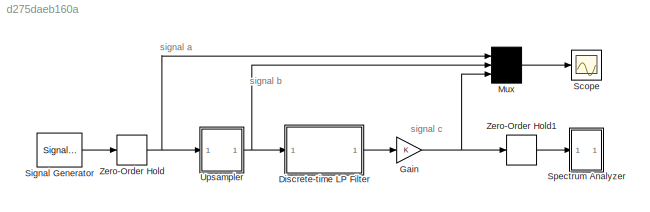
MODEL slx_d275daeb160a
KIND model
CONFIG AbsTol = 1e-6
CONFIG EnableMultiTasking = off
CONFIG FixedStep = auto
CONFIG MaxStep = .05
CONFIG MinStep = auto
CONFIG RelTol = 1e-3
CONFIG SampleTimeConstraint = Unconstrained
CONFIG SolverName = ode45
CONFIG StartTime = 0.0
CONFIG StopTime = 60.0
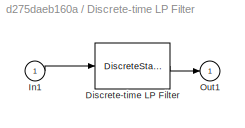
BLOCK [SubSystem] Discrete-time LP Filter
BLOCK [DiscreteStateSpace] Discrete-time LP Filter/Discrete-time LP Filter
  A = a
  B = b
  C = c
  D = d
  SampleTime = ts
BLOCK [Inport] Discrete-time LP Filter/In1
BLOCK [Outport] Discrete-time LP Filter/Out1
BLOCK [Gain] Gain
  OutDataTypeStr = Inherit: Same as input
  ParamDataTypeStr = Inherit: Same as input
  SaturateOnIntegerOverflow = on
BLOCK [Mux] Mux
  Inputs = 3
BLOCK [Scope] Scope
  Floating = off
  NumInputPorts = 1
  ScopeSpecificationString = Simulink.scopes.TimeScopeBlockCfg('CurrentConfiguration', extmgr.ConfigurationSet(extmgr.Configuration('Core','General UI',true),extmgr.Configuration('Core','Source UI',true),extmgr.Configuration('Sources','WiredSimulink',true,'DataLoggingSaveFormat','Array','DataLoggingLimitDataPoints',true,'DataLoggingDecimation','1','DataLoggingDecimateData',true),extmgr.Configuration('Visuals','Time Domain',tr...<+1788ch>
BLOCK [SignalGenerator] Signal Generator
  Amplitude = 1.000000
  Frequency = 0.1
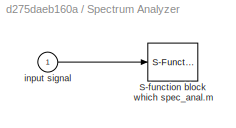
BLOCK [SubSystem] Spectrum Analyzer
  ShowPortLabels = none
BLOCK [S-Function] Spectrum Analyzer/S-function block which spec_anal.m
  EnableBusSupport = off
  FunctionName = SpecAnal
  Parameters = N,T_s,plot_period
  SFcnIsStateOwnerBlock = off
  SFunctionDeploymentMode = off
BLOCK [Inport] Spectrum Analyzer/input signal
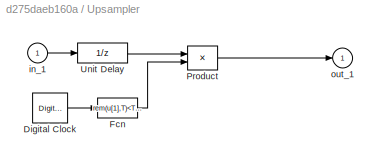
BLOCK [SubSystem] Upsampler
  ShowPortLabels = none
BLOCK [DigitalClock] Upsampler/Digital Clock
  SampleTime = T/L
BLOCK [Fcn] Upsampler/Fcn
  Expr = rem(u[1],T)<T/L
BLOCK [Product] Upsampler/Product
  InputSameDT = on
  OutDataTypeStr = Inherit: Same as first input
  RndMeth = Zero
  SaturateOnIntegerOverflow = on
BLOCK [UnitDelay] Upsampler/Unit Delay
  HasFrameUpgradeWarning = on
  SampleTime = T/L
BLOCK [Inport] Upsampler/in_1
BLOCK [Outport] Upsampler/out_1
  InitialOutput = 0
BLOCK [ZeroOrderHold] Zero-Order Hold
BLOCK [ZeroOrderHold] Zero-Order Hold1
  SampleTime = .05
ANNOTATION (root): signal a
ANNOTATION (root): signal b
ANNOTATION (root): signal c
LINE Discrete-time LP Filter/Discrete-time LP Filter:1 -> Discrete-time LP Filter/Out1:1
LINE Discrete-time LP Filter/In1:1 -> Discrete-time LP Filter/Discrete-time LP Filter:1
LINE Discrete-time LP Filter:1 -> Gain:1
NET Gain:1 -> Mux:3, Zero-Order Hold1:1
LINE Mux:1 -> Scope:1
LINE Signal Generator:1 -> Zero-Order Hold:1
LINE Spectrum Analyzer/input signal:1 -> Spectrum Analyzer/S-function block which spec_anal.m:1
LINE Upsampler/Digital Clock:1 -> Upsampler/Fcn:1
LINE Upsampler/Fcn:1 -> Upsampler/Product:2
LINE Upsampler/Product:1 -> Upsampler/out_1:1
LINE Upsampler/Unit Delay:1 -> Upsampler/Product:1
LINE Upsampler/in_1:1 -> Upsampler/Unit Delay:1
NET Upsampler:1 -> Discrete-time LP Filter:1, Mux:2
LINE Zero-Order Hold1:1 -> Spectrum Analyzer:1
NET Zero-Order Hold:1 -> Mux:1, Upsampler:1
note: NET lines group one-source signal fan-out (src -> all destinations, sorted); 1:1 wires keep LINE
